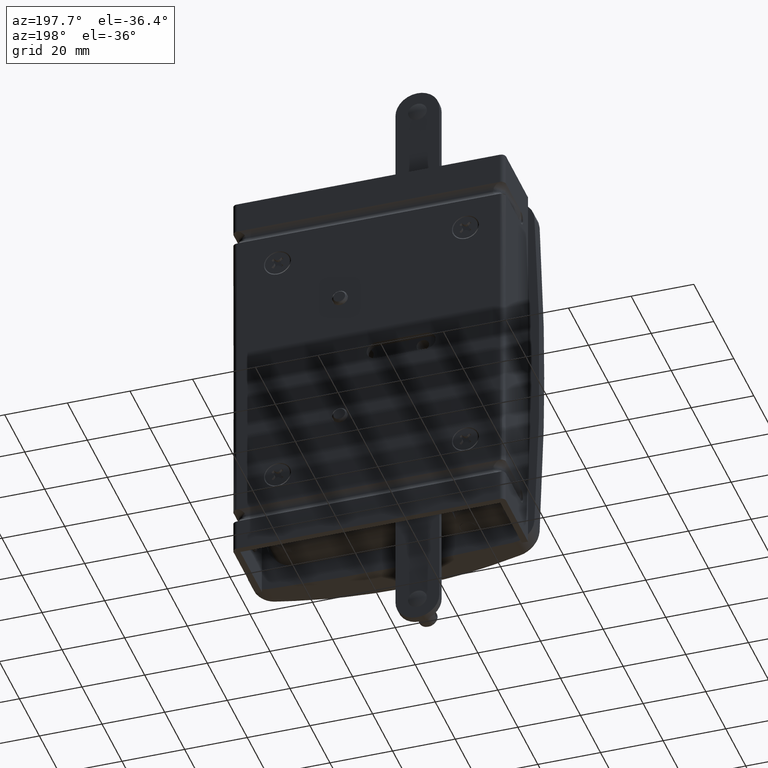
[diagram: clean part render]
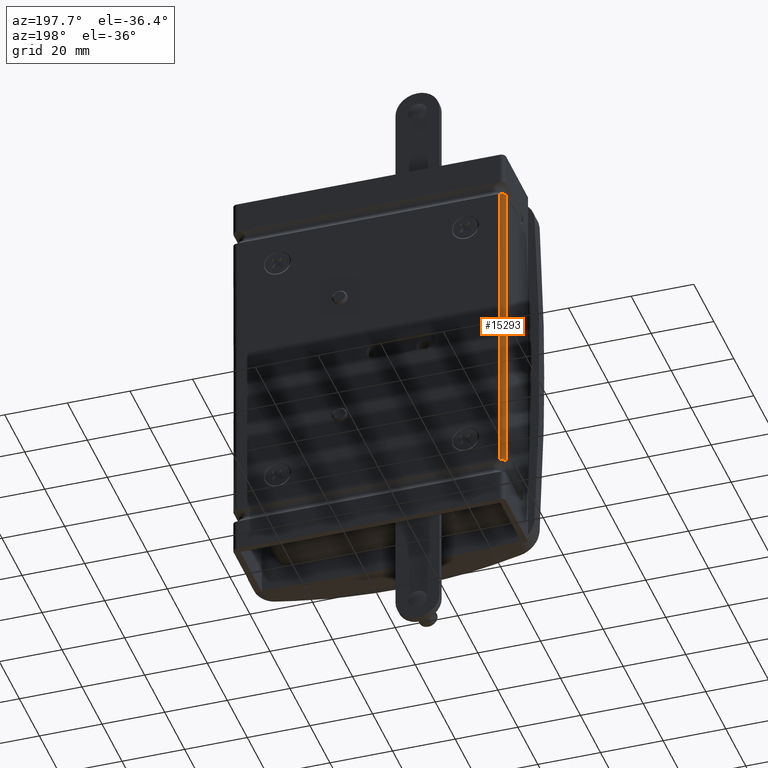
[diagram: same view with one face highlighted and labeled with its STEP entity id]
A machine part, auxiliary view. The second image highlights one B-rep face of the part: STEP entity #15293.
In plain terms, the highlighted face is a freeform B-spline surface patch.
Its self-contained STEP definition (entity closure, byte-faithful):
#15201=CARTESIAN_POINT('',(3.500522012536733,22.460734577539039,-52.779527088621201));
#15202=CARTESIAN_POINT('',(3.500522012536733,22.460734577539039,52.842363105987033));
#15203=CARTESIAN_POINT('',(3.458415002103702,24.068736431615203,-52.779527088621194));
#15204=CARTESIAN_POINT('',(3.458415002103702,24.068736431615203,52.842363105987019));
#15205=CARTESIAN_POINT('',(5.065437081048941,23.998572332372749,-52.779527088621201));
#15206=CARTESIAN_POINT('',(5.065437081048941,23.998572332372749,52.842363105987033));
#15214=(BOUNDED_SURFACE()B_SPLINE_SURFACE(1,2,((#15201,#15203,#15205),(#15202,#15204,#15206)),.UNSPECIFIED.,.F.,.F.,.U.)B_SPLINE_SURFACE_WITH_KNOTS((2,2),(3,3),(0.0,105.621890194608200),(0.0,2.608874249765599),.UNSPECIFIED.)GEOMETRIC_REPRESENTATION_ITEM()RATIONAL_B_SPLINE_SURFACE(((1.0,0.681998360062498,1.0),(1.0,0.681998360062498,1.0)))REPRESENTATION_ITEM('')SURFACE());
#15215=CARTESIAN_POINT('',(3.500008000000090,22.500000000000000,-50.260865405788898));
#15216=VERTEX_POINT('',#15215);
#15217=CARTESIAN_POINT('',(5.000007999998430,24.0,-50.242177803128108));
#15218=VERTEX_POINT('',#15217);
#15219=CARTESIAN_POINT('',(3.500008000000090,22.500000000000000,-50.260865405788898));
#15220=CARTESIAN_POINT('',(3.500008000000091,22.599074073079919,-50.257642158064030));
#15221=CARTESIAN_POINT('',(3.509726844628907,22.696492510865021,-50.257772203156868));
#15222=CARTESIAN_POINT('',(3.538290282009458,22.840247145663831,-50.259435995067783));
#15223=CARTESIAN_POINT('',(3.550159680253656,22.887766853867149,-50.260254666104110));
#15224=CARTESIAN_POINT('',(3.578703344539259,22.981992074203450,-50.262003576931413));
#15225=CARTESIAN_POINT('',(3.595451319394627,23.028805071398398,-50.262935313712681));
#15226=CARTESIAN_POINT('',(3.651878019576456,23.164983192391560,-50.265345710343773));
#15227=CARTESIAN_POINT('',(3.697927104122802,23.251130412264931,-50.266419196858138));
#15228=CARTESIAN_POINT('',(3.779561457104813,23.373448982393640,-50.266181196976511));
#15229=CARTESIAN_POINT('',(3.809014306292222,23.413222410062868,-50.265801129117932));
#15230=CARTESIAN_POINT('',(3.871691288945441,23.489617374669500,-50.264397362191012));
#15231=CARTESIAN_POINT('',(3.904669663919081,23.525974805177778,-50.263381946496629));
#15232=CARTESIAN_POINT('',(4.008373249635131,23.629699963380428,-50.259496575636199));
#15233=CARTESIAN_POINT('',(4.083820039589917,23.691771202631180,-50.255754363726979));
#15234=CARTESIAN_POINT('',(4.206716077331296,23.774016353891820,-50.249383943114061));
#15235=CARTESIAN_POINT('',(4.249221962806582,23.799508710677571,-50.247148434206231));
#15236=CARTESIAN_POINT('',(4.335661910606159,23.845751402109101,-50.242818204306779));
#15237=CARTESIAN_POINT('',(4.379812426192799,23.866652590588188,-50.240711687442463));
#15238=CARTESIAN_POINT('',(4.469961315689413,23.904077051155969,-50.236955587828191));
#15239=CARTESIAN_POINT('',(4.515959624265079,23.920600382692491,-50.235304936217901));
#15240=CARTESIAN_POINT('',(4.609848436723951,23.949201087683111,-50.232880072919592));
#15241=CARTESIAN_POINT('',(4.657982844476163,23.961320541302179,-50.232105879246241));
#15242=CARTESIAN_POINT('',(4.803273792648813,23.990319219975810,-50.231900543994563));
#15243=CARTESIAN_POINT('',(4.901160237500830,24.0,-50.234504028783633));
#15244=CARTESIAN_POINT('',(5.000007999998430,24.0,-50.242177803128108));
#15245=B_SPLINE_CURVE_WITH_KNOTS('',3,(#15219,#15220,#15221,#15222,#15223,#15224,#15225,#15226,#15227,#15228,#15229,#15230,#15231,#15232,#15233,#15234,#15235,#15236,#15237,#15238,#15239,#15240,#15241,#15242,#15243,#15244),.UNSPECIFIED.,.F.,.U.,(4,2,2,2,2,2,2,2,2,2,2,2,4),(0.0,0.125000000000002,0.187500000000002,0.250000000000003,0.375000000000005,0.437500000000006,0.500000000000006,0.625000000000005,0.687500000000004,0.750000000000003,0.812500000000002,0.875000000000001,1.0),.UNSPECIFIED.);
#15246=EDGE_CURVE('',#15216,#15218,#15245,.T.);
#15247=ORIENTED_EDGE('',*,*,#15246,.F.);
#15248=CARTESIAN_POINT('',(3.500008000000090,22.500000000000849,50.260865405785999));
#15249=VERTEX_POINT('',#15248);
#15250=CARTESIAN_POINT('',(3.500008000000090,22.500000000000849,50.260865405785999));
#15251=CARTESIAN_POINT('',(3.500008000000090,22.500000000000000,-50.260865405788898));
#15252=QUASI_UNIFORM_CURVE('',1,(#15250,#15251),.UNSPECIFIED.,.F.,.U.);
#15253=EDGE_CURVE('',#15249,#15216,#15252,.T.);
#15254=ORIENTED_EDGE('',*,*,#15253,.F.);
#15255=CARTESIAN_POINT('',(5.000007999999871,24.0,50.242177803128200));
#15256=VERTEX_POINT('',#15255);
#15257=CARTESIAN_POINT('',(5.000007999999871,24.0,50.242177803128200));
#15258=CARTESIAN_POINT('',(4.901124628914148,24.0,50.234501264408529));
#15259=CARTESIAN_POINT('',(4.803771230018008,23.990315279468170,50.231929083069062));
#15260=CARTESIAN_POINT('',(4.660002232478861,23.961773991963060,50.232088747364656));
#15261=CARTESIAN_POINT('',(4.612458608234081,23.949907777209919,50.232829131064669));
#15262=CARTESIAN_POINT('',(4.518155785297295,23.921353417225301,50.235232562810680));
#15263=CARTESIAN_POINT('',(4.471395943242675,23.904627353512279,50.236900566287872));
#15264=CARTESIAN_POINT('',(4.335364983604802,23.848289470363738,50.242554287765550));
#15265=CARTESIAN_POINT('',(4.249231679672481,23.802291577238599,50.247178371734520));
#15266=CARTESIAN_POINT('',(4.126788026119658,23.720612135792571,50.253527921517602));
#15267=CARTESIAN_POINT('',(4.086900606131146,23.691075546431652,50.255565306162197));
#15268=CARTESIAN_POINT('',(4.010729716332128,23.628607348686220,50.259183176342802));
#15269=CARTESIAN_POINT('',(3.974431975681155,23.595709629798950,50.260765524139977));
#15270=CARTESIAN_POINT('',(3.870765750128793,23.492146682236871,50.264657518950663));
#15271=CARTESIAN_POINT('',(3.808572968429151,23.416658249773981,50.266079218307922));
#15272=CARTESIAN_POINT('',(3.726048768483595,23.293393232746020,50.266345625285929));
#15273=CARTESIAN_POINT('',(3.700635697975380,23.251020833745141,50.266129254086501));
#15274=CARTESIAN_POINT('',(3.654394463416729,23.164623865168750,50.265234501214607));
#15275=CARTESIAN_POINT('',(3.633477664841692,23.120467849939612,50.264556078109443));
#15276=CARTESIAN_POINT('',(3.596008797455490,23.030256304979890,50.262962654204827));
#15277=CARTESIAN_POINT('',(3.579456608260913,22.984200840396419,50.262046749090871));
#15278=CARTESIAN_POINT('',(3.550801214227138,22.890149205410371,50.260296813936343));
#15279=CARTESIAN_POINT('',(3.538673243828422,22.841952256928160,50.259460657035120));
#15280=CARTESIAN_POINT('',(3.509723078231609,22.696909406590450,50.257767366348112));
#15281=CARTESIAN_POINT('',(3.500008000000090,22.599044303411070,50.257643126581947));
#15282=CARTESIAN_POINT('',(3.500008000000090,22.500000000000849,50.260865405785999));
#15283=B_SPLINE_CURVE_WITH_KNOTS('',3,(#15257,#15258,#15259,#15260,#15261,#15262,#15263,#15264,#15265,#15266,#15267,#15268,#15269,#15270,#15271,#15272,#15273,#15274,#15275,#15276,#15277,#15278,#15279,#15280,#15281,#15282),.UNSPECIFIED.,.F.,.U.,(4,2,2,2,2,2,2,2,2,2,2,2,4),(0.0,0.124999999999998,0.187499999999996,0.249999999999994,0.374999999999992,0.437499999999992,0.499999999999993,0.624999999999997,0.687499999999998,0.749999999999998,0.812499999999999,0.874999999999999,1.0),.UNSPECIFIED.);
#15284=EDGE_CURVE('',#15256,#15249,#15283,.T.);
#15285=ORIENTED_EDGE('',*,*,#15284,.F.);
#15286=CARTESIAN_POINT('',(5.000007999998430,24.0,-50.242177803128108));
#15287=CARTESIAN_POINT('',(5.000007999999871,24.0,50.242177803128200));
#15288=QUASI_UNIFORM_CURVE('',1,(#15286,#15287),.UNSPECIFIED.,.F.,.U.);
#15289=EDGE_CURVE('',#15218,#15256,#15288,.T.);
#15290=ORIENTED_EDGE('',*,*,#15289,.F.);
#15291=EDGE_LOOP('',(#15247,#15254,#15285,#15290));
#15292=FACE_OUTER_BOUND('',#15291,.T.);
#15293=ADVANCED_FACE('',(#15292),#15214,.T.);